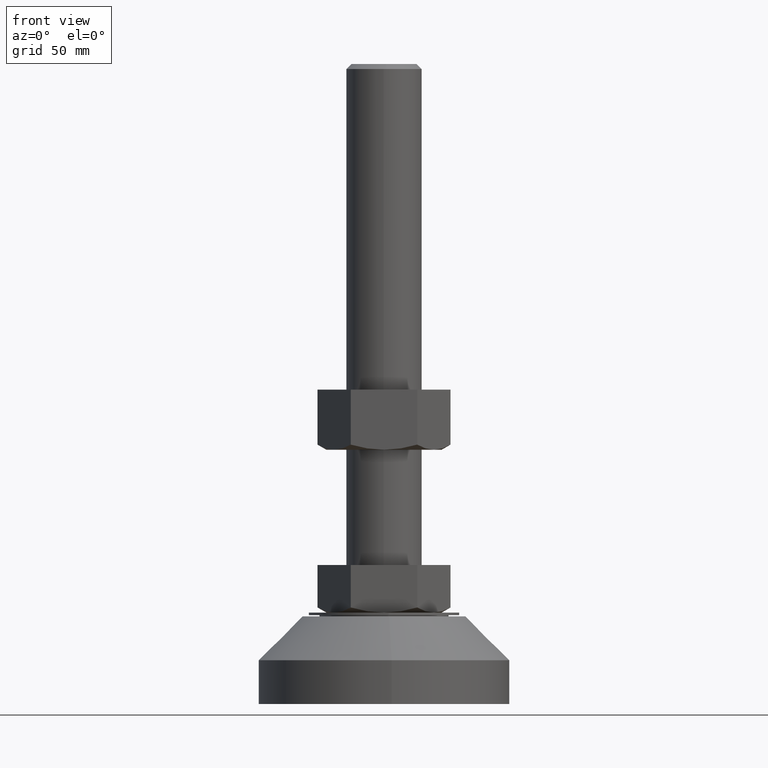
[diagram: clean part render]
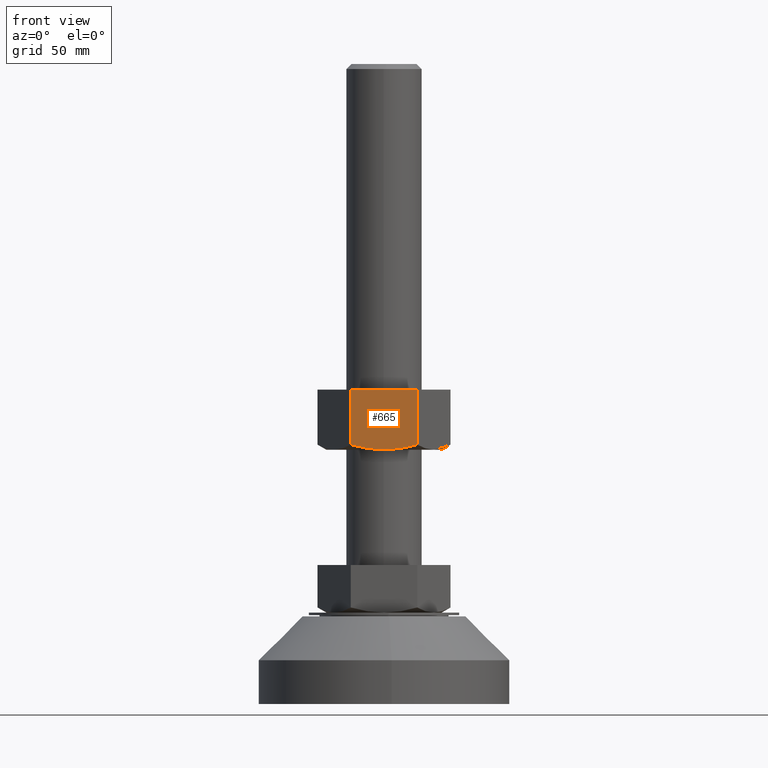
[diagram: same view with one face highlighted and labeled with its STEP entity id]
A machine part, front view. The second image highlights one B-rep face of the part: STEP entity #665.
In plain terms, the highlighted face is a freeform B-spline surface patch.
Its self-contained STEP definition (entity closure, byte-faithful):
#194=CARTESIAN_POINT('',(2.042810E-013,-23.000000000623249,101.500000000000000));
#195=VERTEX_POINT('',#194);
#306=CARTESIAN_POINT('',(-13.279056191222020,-23.000000000000501,103.554277141584390));
#307=VERTEX_POINT('',#306);
#308=CARTESIAN_POINT('',(-13.279056191222020,-23.000000000000501,103.554277141584390));
#309=CARTESIAN_POINT('',(-12.198869944399000,-22.999999999999702,103.242454231395600));
#310=CARTESIAN_POINT('',(-11.108759384254411,-22.999999999999702,102.956187111477900));
#311=CARTESIAN_POINT('',(-9.454778101003612,-22.999999999999702,102.575237493196600));
#312=CARTESIAN_POINT('',(-8.902316039079517,-22.999999999999691,102.456826715605000));
#313=CARTESIAN_POINT('',(-7.796433117022255,-22.999999999999702,102.238958705090890));
#314=CARTESIAN_POINT('',(-7.242781216517976,-22.999999999999691,102.139450308916390));
#315=CARTESIAN_POINT('',(-5.579535230770669,-22.999999999999691,101.871310993675710));
#316=CARTESIAN_POINT('',(-4.467642062740147,-22.999999999999691,101.733182680877900));
#317=CARTESIAN_POINT('',(-2.238358477964196,-22.999999999999691,101.547547692235100));
#318=CARTESIAN_POINT('',(-1.120971110900386,-22.999999999999702,101.500000555368500));
#319=CARTESIAN_POINT('',(4.465048E-011,-22.999999999999702,101.500000000630910));
#320=B_SPLINE_CURVE_WITH_KNOTS('',3,(#308,#309,#310,#311,#312,#313,#314,#315,#316,#317,#318,#319),.UNSPECIFIED.,.F.,.U.,(4,2,2,2,2,4),(0.0,0.125000000000000,0.187500000000000,0.250000000000000,0.375000000000000,0.499851510291382),.UNSPECIFIED.);
#321=EDGE_CURVE('',#307,#195,#320,.T.);
#355=CARTESIAN_POINT('',(13.279056191361841,-22.999999999999702,103.554277141584390));
#356=VERTEX_POINT('',#355);
#357=CARTESIAN_POINT('',(2.042810E-013,-23.000000000623249,101.500000000000000));
#358=CARTESIAN_POINT('',(0.001333205721319,-22.999999999999702,101.499999999971100));
#359=CARTESIAN_POINT('',(0.002666415642708,-22.999999999999702,101.500000066566300));
#360=CARTESIAN_POINT('',(1.126312481604743,-22.999999999999702,101.500112880034810));
#361=CARTESIAN_POINT('',(2.252219217239045,-22.999999999999702,101.547906682508990));
#362=CARTESIAN_POINT('',(3.664036735894839,-22.999999999999691,101.666477430222800));
#363=CARTESIAN_POINT('',(3.946488721869175,-22.999999999999691,101.693114944901790));
#364=CARTESIAN_POINT('',(4.509252360616516,-22.999999999999709,101.751856182336500));
#365=CARTESIAN_POINT('',(5.351149180366557,-22.999999999999691,101.848242223912390));
#366=CARTESIAN_POINT('',(6.186543639419772,-22.999999999999702,101.968554628567600));
#367=CARTESIAN_POINT('',(7.849348172585478,-22.999999999999691,102.238559120421400));
#368=CARTESIAN_POINT('',(8.947244764162546,-22.999999999999709,102.457712642810090));
#369=CARTESIAN_POINT('',(11.125465257919579,-22.999999999999702,102.960680903166900));
#370=CARTESIAN_POINT('',(12.205800248984540,-22.999999999999702,103.244454838002200));
#371=CARTESIAN_POINT('',(13.279056191351780,-22.999999999999702,103.554277141621400));
#372=B_SPLINE_CURVE_WITH_KNOTS('',3,(#357,#358,#359,#360,#361,#362,#363,#364,#365,#366,#367,#368,#369,#370,#371),.UNSPECIFIED.,.F.,.U.,(4,2,2,2,1,2,2,4),(0.499851510321993,0.500000000000000,0.625000000000000,0.656250000000000,0.687500000000000,0.750000000000000,0.875000000000000,1.0),.UNSPECIFIED.);
#373=EDGE_CURVE('',#195,#356,#372,.T.);
#594=CARTESIAN_POINT('',(13.279056191361841,-22.999999999999702,125.500000000000000));
#595=VERTEX_POINT('',#594);
#624=CARTESIAN_POINT('',(-13.279056191361301,-22.999999999999599,125.500000000000000));
#625=VERTEX_POINT('',#624);
#631=CARTESIAN_POINT('',(-13.279056191361301,-22.999999999999599,125.500000000000000));
#632=CARTESIAN_POINT('',(13.279056191361841,-22.999999999999702,125.500000000000000));
#633=QUASI_UNIFORM_CURVE('',1,(#631,#632),.UNSPECIFIED.,.F.,.U.);
#634=EDGE_CURVE('',#625,#595,#633,.T.);
#645=CARTESIAN_POINT('',(-14.605633853403541,-22.999999999999702,126.698799953483400));
#646=CARTESIAN_POINT('',(-14.605633853403541,-22.999999999999702,100.301199402786490));
#647=CARTESIAN_POINT('',(14.605634565748170,-22.999999999999702,126.698799953483400));
#648=CARTESIAN_POINT('',(14.605634565748170,-22.999999999999702,100.301199402786490));
#649=B_SPLINE_SURFACE_WITH_KNOTS('',1,1,((#645,#647),(#646,#648)),.UNSPECIFIED.,.F.,.F.,.U.,(2,2),(2,2),(0.0,26.397600550696868),(0.0,29.211268419151718),.UNSPECIFIED.);
#650=CARTESIAN_POINT('',(-13.279056191222020,-23.000000000000501,103.554277141584390));
#651=CARTESIAN_POINT('',(-13.279056191361301,-22.999999999999599,125.500000000000000));
#652=QUASI_UNIFORM_CURVE('',1,(#650,#651),.UNSPECIFIED.,.F.,.U.);
#653=EDGE_CURVE('',#307,#625,#652,.T.);
#654=ORIENTED_EDGE('',*,*,#653,.F.);
#655=ORIENTED_EDGE('',*,*,#321,.T.);
#656=ORIENTED_EDGE('',*,*,#373,.T.);
#657=CARTESIAN_POINT('',(13.279056191361841,-22.999999999999702,103.554277141584390));
#658=CARTESIAN_POINT('',(13.279056191361841,-22.999999999999702,125.500000000000000));
#659=QUASI_UNIFORM_CURVE('',1,(#657,#658),.UNSPECIFIED.,.F.,.U.);
#660=EDGE_CURVE('',#356,#595,#659,.T.);
#661=ORIENTED_EDGE('',*,*,#660,.T.);
#662=ORIENTED_EDGE('',*,*,#634,.F.);
#663=EDGE_LOOP('',(#654,#655,#656,#661,#662));
#664=FACE_OUTER_BOUND('',#663,.T.);
#665=ADVANCED_FACE('',(#664),#649,.T.);